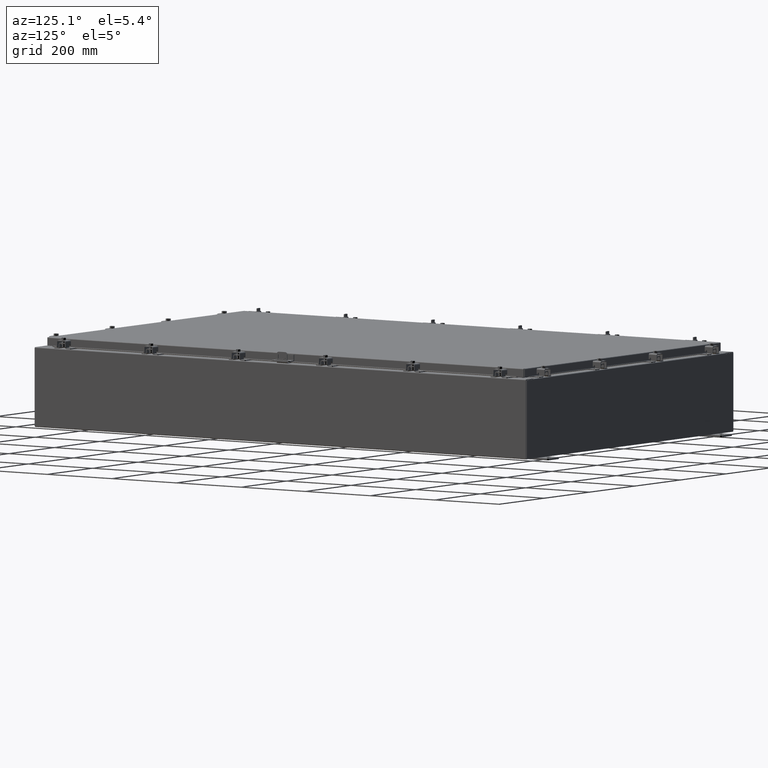
[diagram: clean part render]
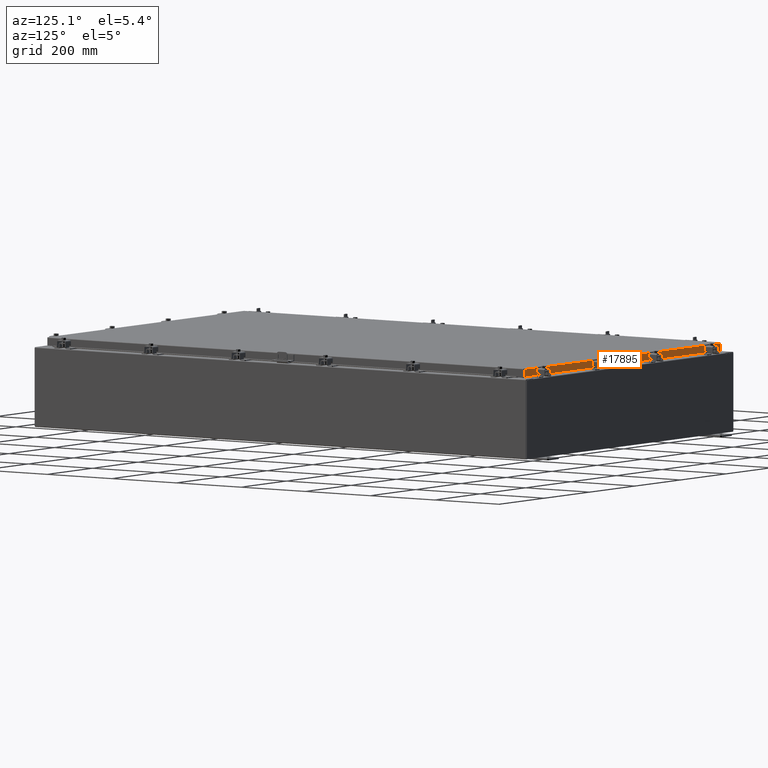
[diagram: same view with one face highlighted and labeled with its STEP entity id]
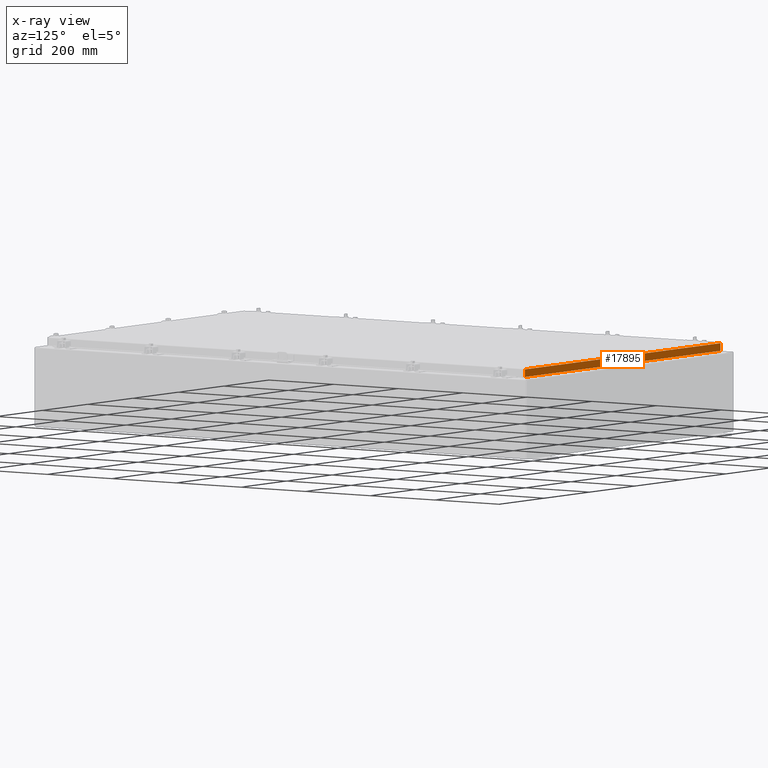
[diagram: x-ray of the same camera — body ghosted, the highlighted face saturated]
A machine part, auxiliary view. The second image highlights one B-rep face of the part: STEP entity #17895.
The next image is the same camera in x-ray: the body ghosted, the highlighted face saturated — about 0% of this face is hidden behind the body in this view.
In plain terms, the highlighted planar face has unit normal (0, -1, -0).
Its self-contained STEP definition (entity closure, byte-faithful):
#598 = CARTESIAN_POINT ( 'NONE',  ( -17.07799999999999600, 29.09400000000000500, -0.8500000000000038600 ) ) ;
#3339 = VECTOR ( 'NONE', #24947, 39.37007874015748100 ) ;
#3508 = VECTOR ( 'NONE', #4731, 39.37007874015748100 ) ;
#3575 = CARTESIAN_POINT ( 'NONE',  ( -17.07799999999999600, 29.09400000000000500, -0.8500000000000038600 ) ) ;
#3659 = CARTESIAN_POINT ( 'NONE',  ( -16.23915786437626400, 29.09400000000000100, -0.8500000000000037500 ) ) ;
#3694 = LINE ( 'NONE', #21841, #9373 ) ;
#4209 = CARTESIAN_POINT ( 'NONE',  ( -16.98915786437626400, 29.09400000000000100, -0.08769999999999549000 ) ) ;
#4505 = ORIENTED_EDGE ( 'NONE', *, *, #22237, .T. ) ;
#4612 = VERTEX_POINT ( 'NONE', #9157 ) ;
#4666 = VECTOR ( 'NONE', #16494, 39.37007874015748100 ) ;
#4731 = DIRECTION ( 'NONE',  ( 1.000000000000000000, -0.0000000000000000000, 1.239713195391617400E-016 ) ) ;
#4788 = LINE ( 'NONE', #598, #3508 ) ;
#4954 = FACE_OUTER_BOUND ( 'NONE', #6892, .T. ) ;
#5379 = CARTESIAN_POINT ( 'NONE',  ( -16.98915786437626400, 29.09400000000000100, -0.07469999999999958600 ) ) ;
#5561 = LINE ( 'NONE', #5379, #15536 ) ;
#6557 = DIRECTION ( 'NONE',  ( 0.0000000000000000000, 5.637761885544689500E-015, -1.000000000000000000 ) ) ;
#6850 = DIRECTION ( 'NONE',  ( 0.0000000000000000000, 5.637761885544689500E-015, -1.000000000000000000 ) ) ;
#6892 = EDGE_LOOP ( 'NONE', ( #13370, #4505, #27532, #25849, #21027, #19586 ) ) ;
#7413 = VERTEX_POINT ( 'NONE', #4209 ) ;
#7553 = EDGE_CURVE ( 'NONE', #20329, #7413, #3694, .T. ) ;
#8644 = PLANE ( 'NONE',  #9492 ) ;
#9157 = CARTESIAN_POINT ( 'NONE',  ( -16.98915786437626400, 29.09400000000000500, -0.8500000000000038600 ) ) ;
#9373 = VECTOR ( 'NONE', #21744, 39.37007874015748100 ) ;
#9492 = AXIS2_PLACEMENT_3D ( 'NONE', #25714, #19352, #6557 ) ;
#11051 = LINE ( 'NONE', #3659, #4666 ) ;
#11139 = LINE ( 'NONE', #21816, #26838 ) ;
#11849 = EDGE_CURVE ( 'NONE', #7413, #4612, #5561, .T. ) ;
#12665 = VERTEX_POINT ( 'NONE', #16336 ) ;
#13370 = ORIENTED_EDGE ( 'NONE', *, *, #7553, .F. ) ;
#13597 = EDGE_CURVE ( 'NONE', #16985, #12665, #4788, .T. ) ;
#15536 = VECTOR ( 'NONE', #24563, 39.37007874015748100 ) ;
#16336 = CARTESIAN_POINT ( 'NONE',  ( 16.98915786437627100, 29.09400000000000500, -0.8499999999999996400 ) ) ;
#16494 = DIRECTION ( 'NONE',  ( 1.000000000000000000, -0.0000000000000000000, -0.0000000000000000000 ) ) ;
#16985 = VERTEX_POINT ( 'NONE', #27203 ) ;
#16989 = EDGE_CURVE ( 'NONE', #17671, #16985, #11051, .T. ) ;
#17671 = VERTEX_POINT ( 'NONE', #20776 ) ;
#17895 = ADVANCED_FACE ( 'NONE', ( #4954 ), #8644, .F. ) ;
#19352 = DIRECTION ( 'NONE',  ( 6.989207801985676400E-031, -1.000000000000000000, -5.637761885544689500E-015 ) ) ;
#19586 = ORIENTED_EDGE ( 'NONE', *, *, #11849, .F. ) ;
#20329 = VERTEX_POINT ( 'NONE', #24339 ) ;
#20776 = CARTESIAN_POINT ( 'NONE',  ( -16.23915786437625600, 29.09400000000000100, -0.8500000000000037500 ) ) ;
#21027 = ORIENTED_EDGE ( 'NONE', *, *, #27040, .F. ) ;
#21744 = DIRECTION ( 'NONE',  ( -1.000000000000000000, -6.989207801985677300E-031, -3.922586267643528000E-045 ) ) ;
#21816 = CARTESIAN_POINT ( 'NONE',  ( 16.98915786437627100, 29.09400000000000100, 1.642858579540487400E-013 ) ) ;
#21841 = CARTESIAN_POINT ( 'NONE',  ( -17.07799999999999600, 29.09400000000000100, -0.08769999999999547600 ) ) ;
#22237 = EDGE_CURVE ( 'NONE', #20329, #12665, #11139, .T. ) ;
#24339 = CARTESIAN_POINT ( 'NONE',  ( 16.98915786437627100, 29.09400000000000100, -0.08769999999999547600 ) ) ;
#24563 = DIRECTION ( 'NONE',  ( -0.0000000000000000000, 5.637761885544689500E-015, -1.000000000000000000 ) ) ;
#24947 = DIRECTION ( 'NONE',  ( 1.000000000000000000, -0.0000000000000000000, 1.239713195391617400E-016 ) ) ;
#25714 = CARTESIAN_POINT ( 'NONE',  ( -2.033440117909712900E-029, 29.09400000000000100, 1.642858579540487400E-013 ) ) ;
#25849 = ORIENTED_EDGE ( 'NONE', *, *, #16989, .F. ) ;
#26018 = LINE ( 'NONE', #3575, #3339 ) ;
#26838 = VECTOR ( 'NONE', #6850, 39.37007874015748100 ) ;
#27040 = EDGE_CURVE ( 'NONE', #4612, #17671, #26018, .T. ) ;
#27203 = CARTESIAN_POINT ( 'NONE',  ( 16.23915786437627100, 29.09400000000000100, -0.8500000000000037500 ) ) ;
#27532 = ORIENTED_EDGE ( 'NONE', *, *, #13597, .F. ) ;